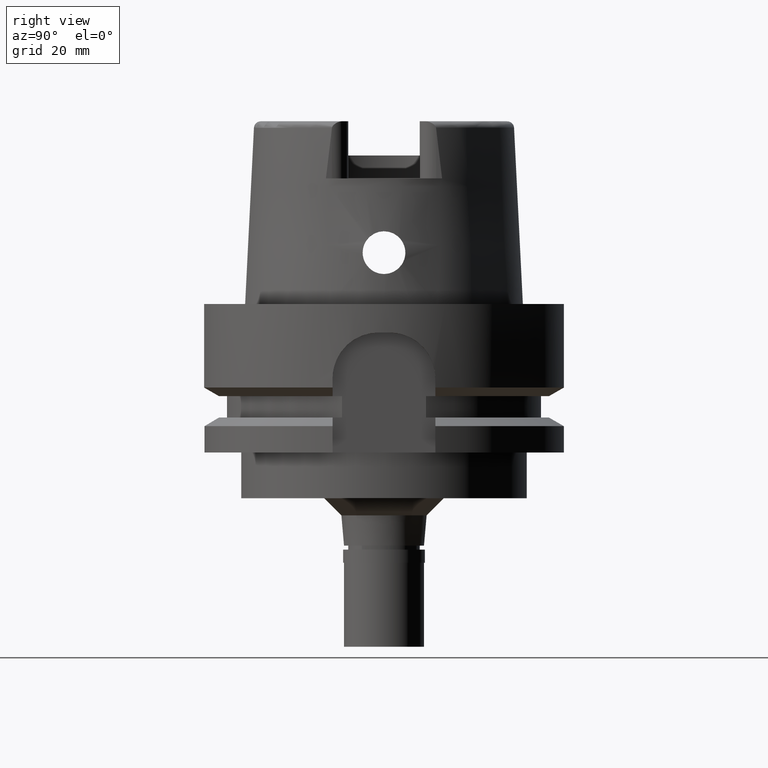
[diagram: clean part render]
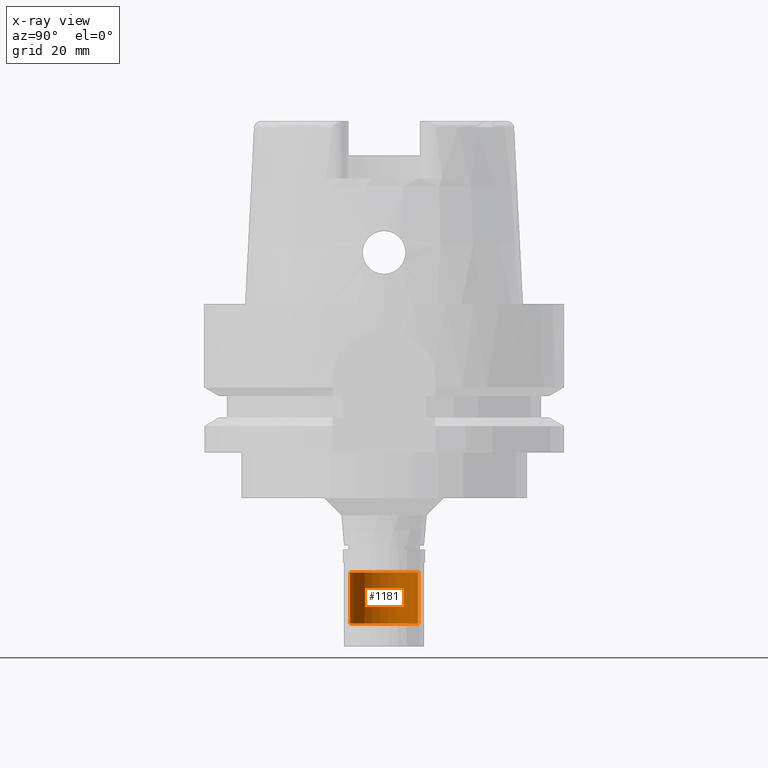
[diagram: x-ray — body ghosted, one internal face saturated and labeled with its STEP entity id]
A machine part, right view, then the same camera in x-ray: the body is ghosted and one INTERNAL B-rep face — a face not visible from any outside direction — is saturated and labeled: STEP entity #1181.
In plain terms, the highlighted cylindrical surface (edge-blend (fillet) strip) has radius 6 mm, axis along (0, 0, -1).
Its self-contained STEP definition (entity closure, byte-faithful):
#250 = CARTESIAN_POINT ( 'NONE',  ( 0.0000000000000000000, 0.0000000000000000000, -47.00000000000000000 ) ) ;
#325 = CARTESIAN_POINT ( 'NONE',  ( 0.0000000000000000000, 0.0000000000000000000, 36.39999999999999858 ) ) ;
#920 = VERTEX_POINT ( 'NONE', #1710 ) ;
#1025 = DIRECTION ( 'NONE',  ( 0.0000000000000000000, 0.0000000000000000000, -1.000000000000000000 ) ) ;
#1085 = LINE ( 'NONE', #1460, #4599 ) ;
#1151 = DIRECTION ( 'NONE',  ( 0.0000000000000000000, 0.0000000000000000000, -1.000000000000000000 ) ) ;
#1181 = ADVANCED_FACE ( 'NONE', ( #3742 ), #3373, .T. ) ;
#1294 = VERTEX_POINT ( 'NONE', #3151 ) ;
#1374 = CIRCLE ( 'NONE', #2204, 6.000000000000000000 ) ;
#1460 = CARTESIAN_POINT ( 'NONE',  ( 0.0000000000000000000, 6.000000000000000000, -47.00000000000000000 ) ) ;
#1505 = AXIS2_PLACEMENT_3D ( 'NONE', #325, #1151, #1588 ) ;
#1512 = DIRECTION ( 'NONE',  ( 0.0000000000000000000, 0.0000000000000000000, -1.000000000000000000 ) ) ;
#1588 = DIRECTION ( 'NONE',  ( 0.0000000000000000000, -1.000000000000000000, 0.0000000000000000000 ) ) ;
#1603 = ORIENTED_EDGE ( 'NONE', *, *, #1859, .T. ) ;
#1710 = CARTESIAN_POINT ( 'NONE',  ( 0.0000000000000000000, 6.000000000000000000, -56.00000000000000000 ) ) ;
#1859 = EDGE_CURVE ( 'NONE', #2772, #1294, #1374, .T. ) ;
#1966 = DIRECTION ( 'NONE',  ( 0.0000000000000000000, -1.000000000000000000, 0.0000000000000000000 ) ) ;
#2119 = CIRCLE ( 'NONE', #5275, 6.000000000000000000 ) ;
#2133 = CARTESIAN_POINT ( 'NONE',  ( 0.0000000000000000000, 0.0000000000000000000, -56.00000000000000000 ) ) ;
#2204 = AXIS2_PLACEMENT_3D ( 'NONE', #250, #1025, #1966 ) ;
#2263 = VERTEX_POINT ( 'NONE', #5462 ) ;
#2530 = EDGE_LOOP ( 'NONE', ( #4586, #4704, #1603, #5024 ) ) ;
#2772 = VERTEX_POINT ( 'NONE', #5389 ) ;
#2918 = VECTOR ( 'NONE', #1512, 1000.000000000000000 ) ;
#3026 = EDGE_CURVE ( 'NONE', #1294, #920, #1085, .T. ) ;
#3151 = CARTESIAN_POINT ( 'NONE',  ( 0.0000000000000000000, 6.000000000000000000, -47.00000000000000000 ) ) ;
#3292 = EDGE_CURVE ( 'NONE', #2772, #2263, #5379, .T. ) ;
#3373 = CYLINDRICAL_SURFACE ( 'NONE', #1505, 6.000000000000000000 ) ;
#3742 = FACE_OUTER_BOUND ( 'NONE', #2530, .T. ) ;
#4063 = DIRECTION ( 'NONE',  ( 0.0000000000000000000, 0.0000000000000000000, -1.000000000000000000 ) ) ;
#4586 = ORIENTED_EDGE ( 'NONE', *, *, #4755, .T. ) ;
#4599 = VECTOR ( 'NONE', #4063, 1000.000000000000000 ) ;
#4704 = ORIENTED_EDGE ( 'NONE', *, *, #3292, .F. ) ;
#4755 = EDGE_CURVE ( 'NONE', #920, #2263, #2119, .T. ) ;
#4793 = DIRECTION ( 'NONE',  ( 0.0000000000000000000, 1.000000000000000000, 0.0000000000000000000 ) ) ;
#4922 = CARTESIAN_POINT ( 'NONE',  ( 0.0000000000000000000, -6.000000000000000000, -47.00000000000000000 ) ) ;
#5024 = ORIENTED_EDGE ( 'NONE', *, *, #3026, .T. ) ;
#5275 = AXIS2_PLACEMENT_3D ( 'NONE', #2133, #5572, #4793 ) ;
#5379 = LINE ( 'NONE', #4922, #2918 ) ;
#5389 = CARTESIAN_POINT ( 'NONE',  ( 0.0000000000000000000, -6.000000000000000000, -47.00000000000000000 ) ) ;
#5462 = CARTESIAN_POINT ( 'NONE',  ( 0.0000000000000000000, -6.000000000000000000, -56.00000000000000000 ) ) ;
#5572 = DIRECTION ( 'NONE',  ( 0.0000000000000000000, 0.0000000000000000000, 1.000000000000000000 ) ) ;